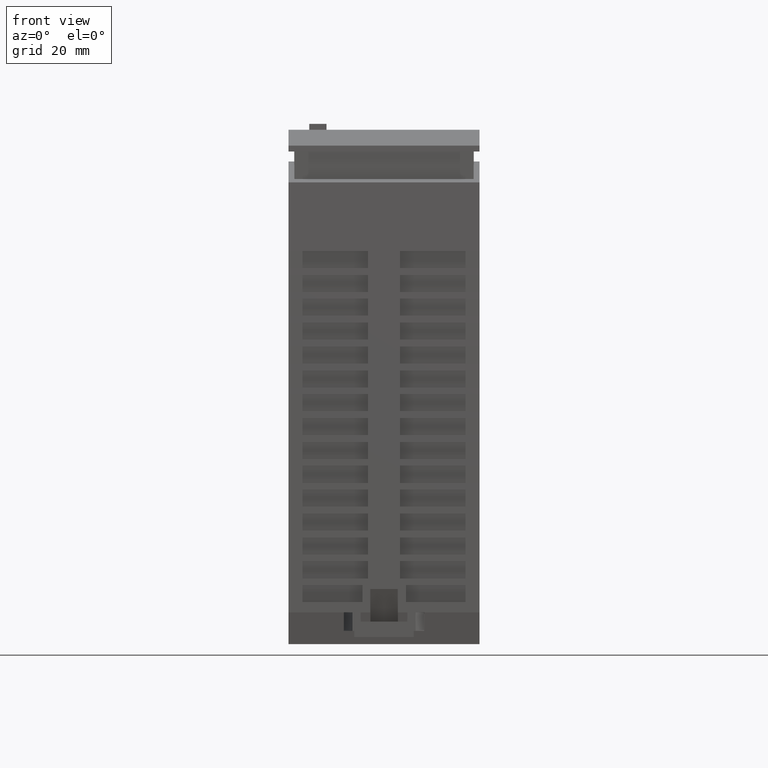
[diagram: clean part render]
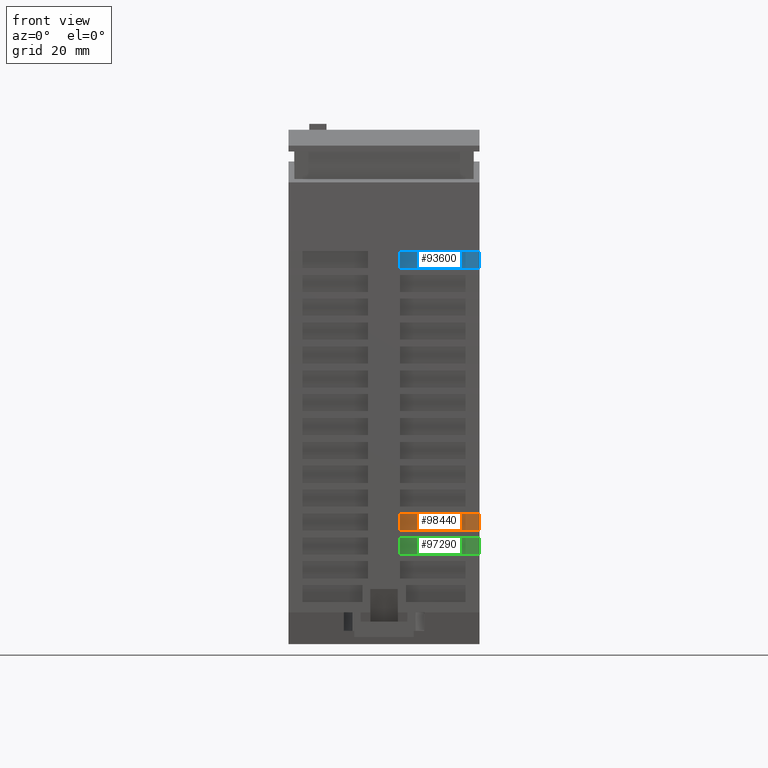
[diagram: same view with three faces highlighted in distinct colors, each labeled with its STEP entity id]
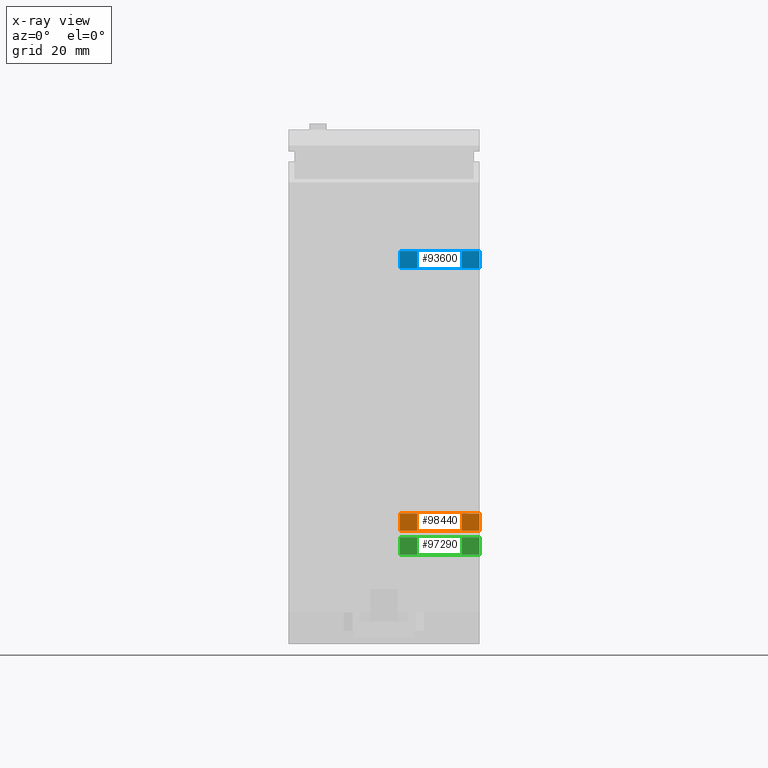
[diagram: x-ray of the same camera — body ghosted, the three highlighted faces saturated]
A machine part, front view with three faces highlighted in distinct colors.
The next image is the same camera in x-ray (body ghosted, the three faces saturated) — at least one of them is partly hidden behind the body in this view.
Their STEP definitions:

[orange] entity #98440 — the highlighted planar face has unit normal (0, 1, 0.0087).
#78780=CARTESIAN_POINT('',(7.56626497334943E-8,-43.5170948042076,
68.0097434723465));
#78790=DIRECTION('',(-5.61887817878561E-13,0.99996192306426,
0.00872653548818193));
#78800=DIRECTION('',(1.10357057953765E-9,-0.00872653548818193,
0.99996192306426));
#78810=AXIS2_PLACEMENT_3D('',#78780,#78790,#78800);
#78820=PLANE('',#78810);
#93520=CARTESIAN_POINT('',(36.0000000482931,-43.3006684815822,
43.2097432836006));
#93530=DIRECTION('',(1.10357057953765E-9,-0.00872653548818193,
0.99996192306426));
#93540=VECTOR('',#93530,1.);
#93550=LINE('',#93520,#93540);
#97700=CARTESIAN_POINT('',(21.0000000175934,-43.0579092811604,
15.3922941673404));
#97710=VERTEX_POINT('',#97700);
#97740=CARTESIAN_POINT('',(11.7500000175934,-43.0579092812547,
15.3922941775479));
#97750=DIRECTION('',(1.,1.01922000756753E-11,-1.10352203151994E-9));
#97760=VECTOR('',#97750,1.);
#97770=LINE('',#97740,#97760);
#97780=CARTESIAN_POINT('',(36.0000000175934,-43.0579092810075,
15.3922941507875));
#97790=VERTEX_POINT('',#97780);
#97800=EDGE_CURVE('',#97710,#97790,#97770,.T.);
#98090=CARTESIAN_POINT('',(21.0000000211619,-43.0861278393592,
18.6258206637127));
#98100=VERTEX_POINT('',#98090);
#98130=CARTESIAN_POINT('',(21.0000000933204,-43.6567246884827,
84.0097434491739));
#98140=DIRECTION('',(-1.10357057953765E-9,0.00872653548818193,
-0.99996192306426));
#98150=VECTOR('',#98140,1.);
#98160=LINE('',#98130,#98150);
#98170=EDGE_CURVE('',#98100,#97710,#98160,.T.);
#98300=ORIENTED_EDGE('',*,*,#97800,.T.);
#98310=ORIENTED_EDGE('',*,*,#98170,.T.);
#98320=CARTESIAN_POINT('',(11.7500000211619,-43.0861278394535,
18.6258206739202));
#98330=DIRECTION('',(-1.,-1.0192214248961E-11,1.10352365561762E-9));
#98340=VECTOR('',#98330,1.);
#98350=LINE('',#98320,#98340);
#98360=CARTESIAN_POINT('',(36.0000000211619,-43.0861278392063,
18.6258206471598));
#98370=VERTEX_POINT('',#98360);
#98380=EDGE_CURVE('',#98370,#98100,#98350,.T.);
#98390=ORIENTED_EDGE('',*,*,#98380,.T.);
#98400=EDGE_CURVE('',#97790,#98370,#93550,.T.);
#98410=ORIENTED_EDGE('',*,*,#98400,.T.);
#98420=EDGE_LOOP('',(#98410,#98390,#98310,#98300));
#98430=FACE_OUTER_BOUND('',#98420,.T.);
#98440=ADVANCED_FACE('',(#98430),#78820,.F.);

[blue] entity #93600 — the highlighted planar face has unit normal (0, 1, 0.0087).
#78780=CARTESIAN_POINT('',(7.56626497334943E-8,-43.5170948042076,
68.0097434723465));
#78790=DIRECTION('',(-5.61887817878561E-13,0.99996192306426,
0.00872653548818193));
#78800=DIRECTION('',(1.10357057953765E-9,-0.00872653548818193,
0.99996192306426));
#78810=AXIS2_PLACEMENT_3D('',#78780,#78790,#78800);
#78820=PLANE('',#78810);
#93070=CARTESIAN_POINT('',(36.0000000757658,-43.5179102258233,
68.1031815369942));
#93080=VERTEX_POINT('',#93070);
#93110=CARTESIAN_POINT('',(11.7500000757658,-43.5179102260704,
68.1031815637546));
#93120=DIRECTION('',(-1.,-1.0192214248961E-11,1.10352365561762E-9));
#93130=VECTOR('',#93120,1.);
#93140=LINE('',#93110,#93130);
#93150=CARTESIAN_POINT('',(21.0000000757658,-43.5179102259761,
68.103181553547));
#93160=VERTEX_POINT('',#93150);
#93170=EDGE_CURVE('',#93080,#93160,#93140,.T.);
#93350=CARTESIAN_POINT('',(11.7500000722472,-43.4900868049139,
64.9149332877224));
#93360=DIRECTION('',(1.,1.01922071623181E-11,-1.10352284356878E-9));
#93370=VECTOR('',#93360,1.);
#93380=LINE('',#93350,#93370);
#93390=CARTESIAN_POINT('',(21.0000000722472,-43.4900868048196,
64.9149332775148));
#93400=VERTEX_POINT('',#93390);
#93410=CARTESIAN_POINT('',(36.0000000722472,-43.4900868046667,
64.9149332609619));
#93420=VERTEX_POINT('',#93410);
#93430=EDGE_CURVE('',#93400,#93420,#93380,.T.);
#93440=ORIENTED_EDGE('',*,*,#93430,.T.);
#93450=CARTESIAN_POINT('',(21.0000000933204,-43.6567246884827,
84.0097434491739));
#93460=DIRECTION('',(-1.10357057953765E-9,0.00872653548818193,
-0.99996192306426));
#93470=VECTOR('',#93460,1.);
#93480=LINE('',#93450,#93470);
#93490=EDGE_CURVE('',#93160,#93400,#93480,.T.);
#93500=ORIENTED_EDGE('',*,*,#93490,.T.);
#93510=ORIENTED_EDGE('',*,*,#93170,.T.);
#93520=CARTESIAN_POINT('',(36.0000000482931,-43.3006684815822,
43.2097432836006));
#93530=DIRECTION('',(1.10357057953765E-9,-0.00872653548818193,
0.99996192306426));
#93540=VECTOR('',#93530,1.);
#93550=LINE('',#93520,#93540);
#93560=EDGE_CURVE('',#93420,#93080,#93550,.T.);
#93570=ORIENTED_EDGE('',*,*,#93560,.T.);
#93580=EDGE_LOOP('',(#93570,#93510,#93500,#93440));
#93590=FACE_OUTER_BOUND('',#93580,.T.);
#93600=ADVANCED_FACE('',(#93590),#78820,.F.);

[green] entity #97290 — the highlighted planar face has unit normal (0, 1, 0.0087).
#78780=CARTESIAN_POINT('',(7.56626497334943E-8,-43.5170948042076,
68.0097434723465));
#78790=DIRECTION('',(-5.61887817878561E-13,0.99996192306426,
0.00872653548818193));
#78800=DIRECTION('',(1.10357057953765E-9,-0.00872653548818193,
0.99996192306426));
#78810=AXIS2_PLACEMENT_3D('',#78780,#78790,#78800);
#78820=PLANE('',#78810);
#93520=CARTESIAN_POINT('',(36.0000000482931,-43.3006684815822,
43.2097432836006));
#93530=DIRECTION('',(1.10357057953765E-9,-0.00872653548818193,
0.99996192306426));
#93540=VECTOR('',#93530,1.);
#93550=LINE('',#93520,#93540);
#96550=CARTESIAN_POINT('',(21.0000000126248,-43.0186204153732,
10.8902360664154));
#96560=VERTEX_POINT('',#96550);
#96590=CARTESIAN_POINT('',(11.7500000126248,-43.0186204154675,
10.890236076623));
#96600=DIRECTION('',(1.,1.01922071623181E-11,-1.10352284356878E-9));
#96610=VECTOR('',#96600,1.);
#96620=LINE('',#96590,#96610);
#96630=CARTESIAN_POINT('',(36.0000000126248,-43.0186204152203,
10.8902360498626));
#96640=VERTEX_POINT('',#96630);
#96650=EDGE_CURVE('',#96560,#96640,#96620,.T.);
#96940=CARTESIAN_POINT('',(21.0000000161979,-43.0468748951213,
14.1278787646368));
#96950=VERTEX_POINT('',#96940);
#96980=CARTESIAN_POINT('',(21.0000000933204,-43.6567246884827,
84.0097434491739));
#96990=DIRECTION('',(-1.10357057953765E-9,0.00872653548818193,
-0.99996192306426));
#97000=VECTOR('',#96990,1.);
#97010=LINE('',#96980,#97000);
#97020=EDGE_CURVE('',#96950,#96560,#97010,.T.);
#97150=ORIENTED_EDGE('',*,*,#96650,.T.);
#97160=ORIENTED_EDGE('',*,*,#97020,.T.);
#97170=CARTESIAN_POINT('',(11.750000016198,-43.0468748952156,
14.1278787748444));
#97180=DIRECTION('',(-1.,-1.01922071623181E-11,1.10352284356878E-9));
#97190=VECTOR('',#97180,1.);
#97200=LINE('',#97170,#97190);
#97210=CARTESIAN_POINT('',(36.0000000161979,-43.0468748949684,
14.1278787480839));
#97220=VERTEX_POINT('',#97210);
#97230=EDGE_CURVE('',#97220,#96950,#97200,.T.);
#97240=ORIENTED_EDGE('',*,*,#97230,.T.);
#97250=EDGE_CURVE('',#96640,#97220,#93550,.T.);
#97260=ORIENTED_EDGE('',*,*,#97250,.T.);
#97270=EDGE_LOOP('',(#97260,#97240,#97160,#97150));
#97280=FACE_OUTER_BOUND('',#97270,.T.);
#97290=ADVANCED_FACE('',(#97280),#78820,.F.);